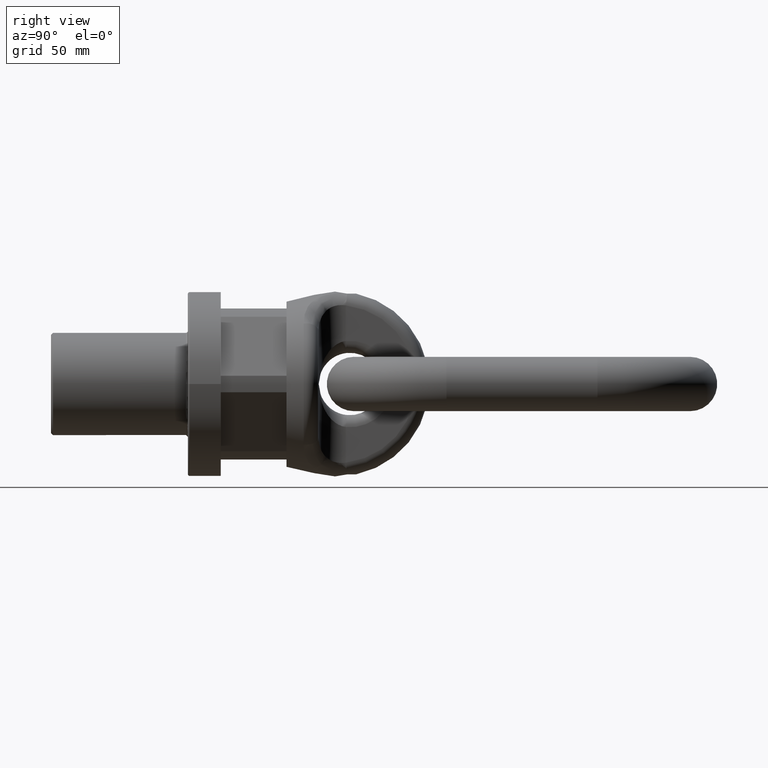
[diagram: clean part render]
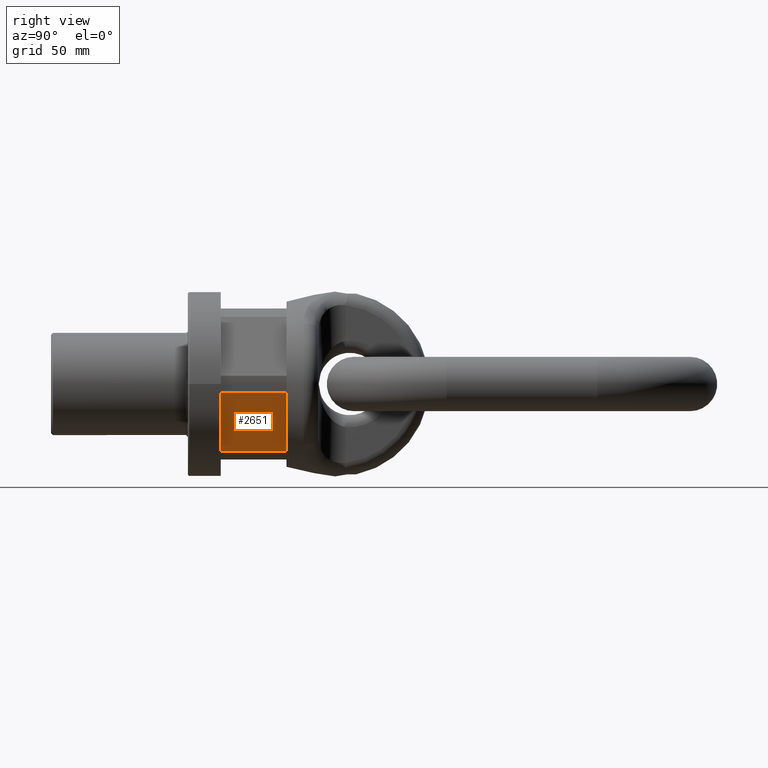
[diagram: same view with one face highlighted and labeled with its STEP entity id]
A machine part, right view. The second image highlights one B-rep face of the part: STEP entity #2651.
In plain terms, the highlighted planar face has unit normal (0.866, 0, -0.5).
Its self-contained STEP definition (entity closure, byte-faithful):
#1809=FACE_OUTER_BOUND('',#3074,.T.);
#2046=LINE('',#6598,#2302);
#2056=LINE('',#6623,#2312);
#2057=LINE('',#6625,#2313);
#2058=LINE('',#6627,#2314);
#2302=VECTOR('',#5834,1.);
#2312=VECTOR('',#5858,1.);
#2313=VECTOR('',#5859,1.);
#2314=VECTOR('',#5860,1.);
#2651=ADVANCED_FACE('',(#1809),#2893,.T.);
#2893=PLANE('',#5620);
#3074=EDGE_LOOP('',(#3380,#3381,#3382,#3383));
#3380=ORIENTED_EDGE('',*,*,#4966,.F.);
#3381=ORIENTED_EDGE('',*,*,#4954,.T.);
#3382=ORIENTED_EDGE('',*,*,#4967,.F.);
#3383=ORIENTED_EDGE('',*,*,#4968,.T.);
#4556=VERTEX_POINT('',#6597);
#4557=VERTEX_POINT('',#6599);
#4565=VERTEX_POINT('',#6624);
#4566=VERTEX_POINT('',#6626);
#4954=EDGE_CURVE('',#4557,#4556,#2046,.T.);
#4966=EDGE_CURVE('',#4557,#4565,#2056,.T.);
#4967=EDGE_CURVE('',#4566,#4556,#2057,.T.);
#4968=EDGE_CURVE('',#4566,#4565,#2058,.T.);
#5620=AXIS2_PLACEMENT_3D('',#6628,#5861,#5862);
#5834=DIRECTION('',(-0.499999999999999,-2.40555621261087E-17,-0.866025403784439));
#5858=DIRECTION('',(-2.4492935982947E-17,1.,0.));
#5859=DIRECTION('',(2.4492935982947E-17,-1.,0.));
#5860=DIRECTION('',(0.499999999999999,0.,0.866025403784439));
#5861=DIRECTION('',(0.866025403784439,0.,-0.499999999999999));
#5862=DIRECTION('',(-0.499999999999999,0.,-0.866025403784439));
#6597=CARTESIAN_POINT('',(24.0211093553735,16.3333333333333,-33.394218142325));
#6598=CARTESIAN_POINT('',(43.9759526419164,16.3333333333333,1.16858428704211));
#6599=CARTESIAN_POINT('',(40.9307959284594,16.3333333333333,-4.10578185767493));
#6623=CARTESIAN_POINT('',(40.9307959284594,2.07083935363146E-16,-4.10578185767493));
#6624=CARTESIAN_POINT('',(40.9307959284594,49.,-4.10578185767492));
#6625=CARTESIAN_POINT('',(24.0211093553735,-2.07083935363146E-16,-33.394218142325));
#6626=CARTESIAN_POINT('',(24.0211093553735,49.,-33.394218142325));
#6627=CARTESIAN_POINT('',(21.650635094611,49.,-37.5));
#6628=CARTESIAN_POINT('',(21.650635094611,49.,-37.5));